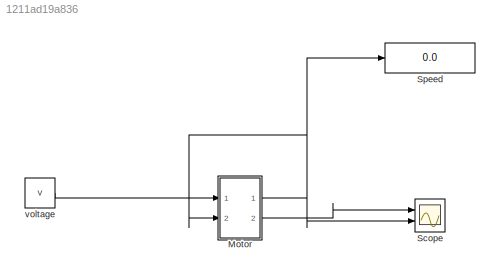
MODEL slx_1211ad19a836
KIND model
CONFIG AbsTol = auto
CONFIG EnableMultiTasking = off
CONFIG FixedStep = auto
CONFIG MaxStep = auto
CONFIG MinStep = auto
CONFIG RelTol = 1e-3
CONFIG SampleTimeConstraint = Unconstrained
CONFIG Solver = VariableStepAuto
CONFIG SolverName = VariableStepAuto
CONFIG StartTime = 0.0
CONFIG StopTime = 1
WORKSPACE source: mxarray member
WORKSPACE Ba = 0.01
WORKSPACE Ja = 0.0167
WORKSPACE Kb = 0.8
WORKSPACE Kt = 0.8
WORKSPACE La = 0.003
WORKSPACE Ra = 0.5
WORKSPACE V = 220
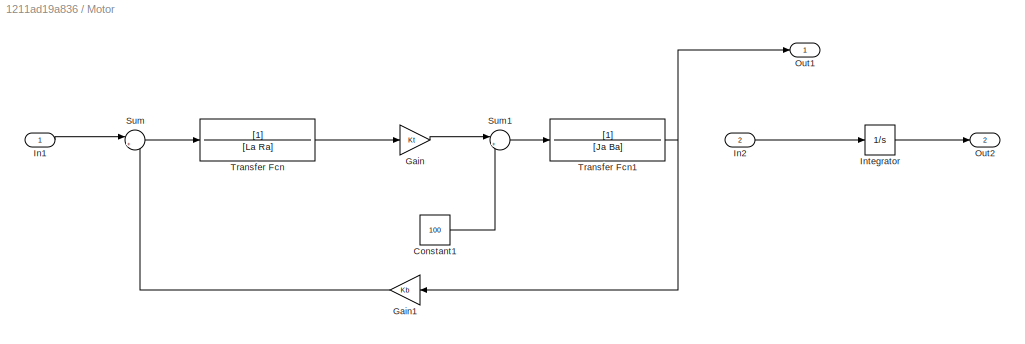
BLOCK [SubSystem] Motor
  Ports = [2, 2]
  RequestExecContextInheritance = off
BLOCK [Constant] Motor/Constant1
  Value = 100
BLOCK [Gain] Motor/Gain
  Gain = Kt
BLOCK [Gain] Motor/Gain1
  Gain = Kb
  NameLocation = top
BLOCK [Inport] Motor/In1
BLOCK [Inport] Motor/In2
  Port = 2
BLOCK [Integrator] Motor/Integrator
  Ports = [1, 1]
BLOCK [Outport] Motor/Out1
BLOCK [Outport] Motor/Out2
  Port = 2
BLOCK [Sum] Motor/Sum
  Inputs = |+-
  Ports = [2, 1]
BLOCK [Sum] Motor/Sum1
  Inputs = |+-
  Ports = [2, 1]
BLOCK [TransferFcn] Motor/Transfer Fcn
  Denominator = [La Ra]
BLOCK [TransferFcn] Motor/Transfer Fcn1
  Denominator = [Ja Ba]
BLOCK [Scope] Scope
  Floating = off
  NumInputPorts = 2
  Ports = [2]
  ScopeSpecificationString = Simulink.scopes.TimeScopeBlockCfg('CurrentConfiguration', extmgr.ConfigurationSet(extmgr.Configuration('Core','General UI',true),extmgr.Configuration('Core','Source UI',true),extmgr.Configuration('Sources','WiredSimulink',true),extmgr.Configuration('Visuals','Time Domain',true,'SerializedDisplays',{struct('MinYLimReal','-24.05929','MaxYLimReal','216.3907','YLabelReal','','MinYLimMag','0.00000','Ma...<+2018ch>
BLOCK [Display] Speed
  Decimation = 1
  Ports = [1]
BLOCK [Constant] voltage
  Value = V
LINE Motor/Constant1:1 -> Motor/Sum1:2
LINE Motor/Gain1:1 -> Motor/Sum:2
LINE Motor/Gain:1 -> Motor/Sum1:1
LINE Motor/In1:1 -> Motor/Sum:1
LINE Motor/In2:1 -> Motor/Integrator:1
LINE Motor/Integrator:1 -> Motor/Out2:1
LINE Motor/Sum1:1 -> Motor/Transfer Fcn1:1
LINE Motor/Sum:1 -> Motor/Transfer Fcn:1
NET Motor/Transfer Fcn1:1 -> Motor/Gain1:1, Motor/Out1:1
LINE Motor/Transfer Fcn:1 -> Motor/Gain:1
NET Motor:1 -> Motor:2, Scope:2, Speed:1
LINE Motor:2 -> Scope:1
LINE voltage:1 -> Motor:1
note: NET lines group one-source signal fan-out (src -> all destinations, sorted); 1:1 wires keep LINE
